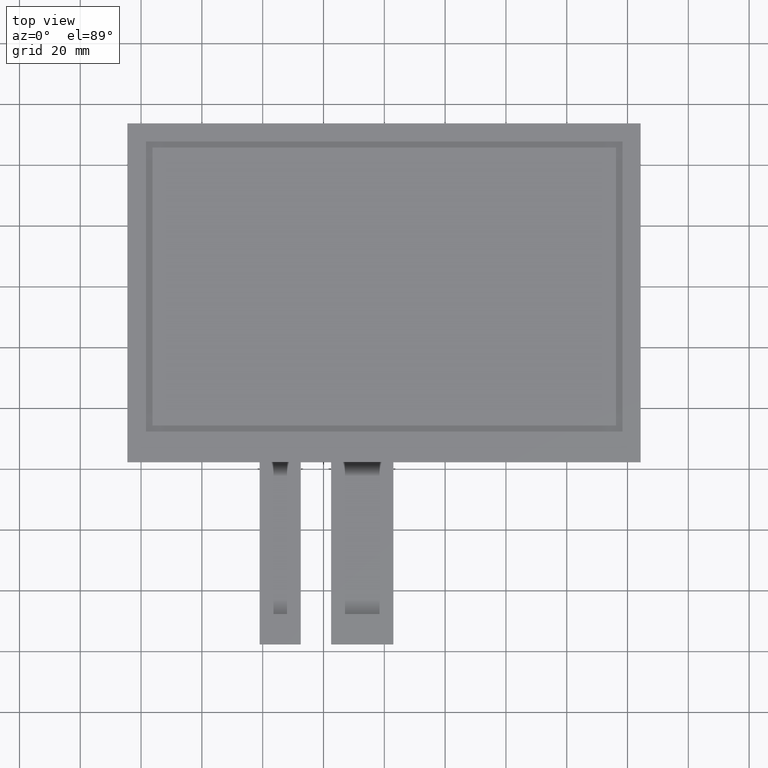
[diagram: clean part render]
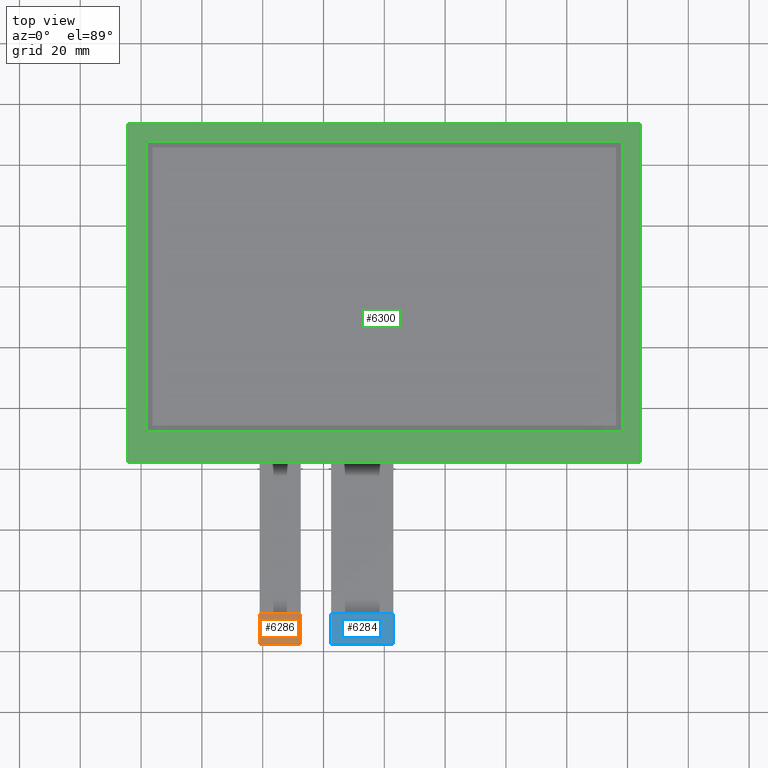
[diagram: same view with three faces highlighted in distinct colors, each labeled with its STEP entity id]
A machine part, top view with three faces highlighted in distinct colors.
Their STEP definitions:

[orange] entity #6286 — the highlighted planar face has unit normal (0, 0, 1).
#348=PLANE('',#6616);
#650=FACE_OUTER_BOUND('',#952,.T.);
#952=EDGE_LOOP('',(#5899,#5900,#5901,#5902,#5903,#5904));
#1085=LINE('',#8362,#1965);
#1096=LINE('',#8388,#1976);
#1801=LINE('',#9808,#2681);
#1816=LINE('',#9836,#2696);
#1965=VECTOR('',#6755,10.);
#1976=VECTOR('',#6776,10.);
#2681=VECTOR('',#8031,10.);
#2696=VECTOR('',#8056,10.);
#2737=CIRCLE('',#6328,0.2);
#2740=CIRCLE('',#6334,0.2);
#2745=VERTEX_POINT('',#8141);
#2746=VERTEX_POINT('',#8142);
#2854=VERTEX_POINT('',#8360);
#2858=VERTEX_POINT('',#8372);
#2864=VERTEX_POINT('',#8386);
#3304=VERTEX_POINT('',#9807);
#3337=EDGE_CURVE('',#2745,#2746,#2737,.T.);
#3447=EDGE_CURVE('',#2745,#2854,#1085,.T.);
#3453=EDGE_CURVE('',#2858,#2854,#2740,.T.);
#3460=EDGE_CURVE('',#2858,#2864,#1096,.T.);
#4169=EDGE_CURVE('',#3304,#2746,#1801,.T.);
#4184=EDGE_CURVE('',#2864,#3304,#1816,.T.);
#5899=ORIENTED_EDGE('',*,*,#3337,.F.);
#5900=ORIENTED_EDGE('',*,*,#3447,.T.);
#5901=ORIENTED_EDGE('',*,*,#3453,.F.);
#5902=ORIENTED_EDGE('',*,*,#3460,.T.);
#5903=ORIENTED_EDGE('',*,*,#4184,.T.);
#5904=ORIENTED_EDGE('',*,*,#4169,.T.);
#6286=ADVANCED_FACE('',(#650),#348,.T.);
#6328=AXIS2_PLACEMENT_3D('',#8143,#6641,#6642);
#6334=AXIS2_PLACEMENT_3D('',#8374,#6766,#6767);
#6616=AXIS2_PLACEMENT_3D('',#9837,#8057,#8058);
#6641=DIRECTION('center_axis',(0.,0.,-1.));
#6642=DIRECTION('ref_axis',(-0.707106781186548,-0.707106781186548,0.));
#6755=DIRECTION('',(1.,0.,0.));
#6766=DIRECTION('center_axis',(0.,0.,-1.));
#6767=DIRECTION('ref_axis',(0.707106781186563,-0.707106781186532,0.));
#6776=DIRECTION('',(4.44089209850062E-16,1.,0.));
#8031=DIRECTION('',(0.,-1.,0.));
#8056=DIRECTION('',(-1.,0.,0.));
#8057=DIRECTION('center_axis',(0.,0.,1.));
#8058=DIRECTION('ref_axis',(1.,0.,0.));
#8141=CARTESIAN_POINT('',(-40.8,-117.72,-0.8));
#8142=CARTESIAN_POINT('',(-41.,-117.52,-0.8));
#8143=CARTESIAN_POINT('Origin',(-40.8,-117.52,-0.8));
#8360=CARTESIAN_POINT('',(-27.6999999999999,-117.72,-0.8));
#8362=CARTESIAN_POINT('',(-41.,-117.72,-0.8));
#8372=CARTESIAN_POINT('',(-27.4999999999999,-117.52,-0.8));
#8374=CARTESIAN_POINT('Origin',(-27.6999999999999,-117.52,-0.8));
#8386=CARTESIAN_POINT('',(-27.4999999999999,-107.72,-0.8));
#8388=CARTESIAN_POINT('',(-27.4999999999999,-117.72,-0.8));
#9807=CARTESIAN_POINT('',(-41.,-107.72,-0.8));
#9808=CARTESIAN_POINT('',(-41.,-107.72,-0.8));
#9836=CARTESIAN_POINT('',(-27.4999999999999,-107.72,-0.8));
#9837=CARTESIAN_POINT('Origin',(-34.2499999999999,-112.72,-0.8));

[blue] entity #6284 — the highlighted planar face has unit normal (0, 0, 1).
#346=PLANE('',#6614);
#648=FACE_OUTER_BOUND('',#950,.T.);
#950=EDGE_LOOP('',(#5889,#5890,#5891,#5892,#5893,#5894));
#1263=LINE('',#8727,#2143);
#1274=LINE('',#8753,#2154);
#1808=LINE('',#9822,#2688);
#1814=LINE('',#9832,#2694);
#2143=VECTOR('',#6953,10.);
#2154=VECTOR('',#6974,10.);
#2688=VECTOR('',#8042,10.);
#2694=VECTOR('',#8050,10.);
#2741=CIRCLE('',#6338,0.2);
#2744=CIRCLE('',#6344,0.2);
#2866=VERTEX_POINT('',#8394);
#2867=VERTEX_POINT('',#8395);
#3031=VERTEX_POINT('',#8725);
#3035=VERTEX_POINT('',#8737);
#3041=VERTEX_POINT('',#8751);
#3309=VERTEX_POINT('',#9821);
#3463=EDGE_CURVE('',#2866,#2867,#2741,.T.);
#3629=EDGE_CURVE('',#2866,#3031,#1263,.T.);
#3635=EDGE_CURVE('',#3035,#3031,#2744,.T.);
#3642=EDGE_CURVE('',#3035,#3041,#1274,.T.);
#4176=EDGE_CURVE('',#3309,#2867,#1808,.T.);
#4182=EDGE_CURVE('',#3041,#3309,#1814,.T.);
#5889=ORIENTED_EDGE('',*,*,#3463,.F.);
#5890=ORIENTED_EDGE('',*,*,#3629,.T.);
#5891=ORIENTED_EDGE('',*,*,#3635,.F.);
#5892=ORIENTED_EDGE('',*,*,#3642,.T.);
#5893=ORIENTED_EDGE('',*,*,#4182,.T.);
#5894=ORIENTED_EDGE('',*,*,#4176,.T.);
#6284=ADVANCED_FACE('',(#648),#346,.T.);
#6338=AXIS2_PLACEMENT_3D('',#8396,#6783,#6784);
#6344=AXIS2_PLACEMENT_3D('',#8739,#6964,#6965);
#6614=AXIS2_PLACEMENT_3D('',#9833,#8051,#8052);
#6783=DIRECTION('center_axis',(0.,0.,-1.));
#6784=DIRECTION('ref_axis',(-0.707106781186555,-0.70710678118654,0.));
#6953=DIRECTION('',(1.,0.,0.));
#6964=DIRECTION('center_axis',(0.,0.,-1.));
#6965=DIRECTION('ref_axis',(0.707106781186555,-0.70710678118654,0.));
#6974=DIRECTION('',(-5.55111512312577E-17,1.,0.));
#8042=DIRECTION('',(2.22044604925031E-16,-1.,0.));
#8050=DIRECTION('',(-1.,0.,0.));
#8051=DIRECTION('center_axis',(0.,0.,1.));
#8052=DIRECTION('ref_axis',(1.,0.,0.));
#8394=CARTESIAN_POINT('',(-17.3,-117.72,-0.8));
#8395=CARTESIAN_POINT('',(-17.5,-117.52,-0.8));
#8396=CARTESIAN_POINT('Origin',(-17.3,-117.52,-0.8));
#8725=CARTESIAN_POINT('',(2.80000000000012,-117.72,-0.8));
#8727=CARTESIAN_POINT('',(-17.5,-117.72,-0.8));
#8737=CARTESIAN_POINT('',(3.00000000000013,-117.52,-0.8));
#8739=CARTESIAN_POINT('Origin',(2.80000000000013,-117.52,-0.8));
#8751=CARTESIAN_POINT('',(3.00000000000013,-107.72,-0.8));
#8753=CARTESIAN_POINT('',(3.00000000000013,-117.72,-0.8));
#9821=CARTESIAN_POINT('',(-17.5,-107.72,-0.8));
#9822=CARTESIAN_POINT('',(-17.5,-107.72,-0.8));
#9832=CARTESIAN_POINT('',(3.00000000000013,-107.72,-0.8));
#9833=CARTESIAN_POINT('Origin',(-7.24999999999994,-112.72,-0.8));

[green] entity #6300 — the highlighted planar face has unit normal (0, 0, 1).
#68=FACE_BOUND('',#968,.T.);
#362=PLANE('',#6630);
#664=FACE_OUTER_BOUND('',#967,.T.);
#967=EDGE_LOOP('',(#5961,#5962,#5963,#5964));
#968=EDGE_LOOP('',(#5965,#5966,#5967,#5968));
#1833=LINE('',#9873,#2713);
#1837=LINE('',#9881,#2717);
#1840=LINE('',#9887,#2720);
#1843=LINE('',#9892,#2723);
#1845=LINE('',#9898,#2725);
#1846=LINE('',#9900,#2726);
#1847=LINE('',#9902,#2727);
#1848=LINE('',#9903,#2728);
#2713=VECTOR('',#8093,10.);
#2717=VECTOR('',#8099,10.);
#2720=VECTOR('',#8104,10.);
#2723=VECTOR('',#8109,10.);
#2725=VECTOR('',#8115,10.);
#2726=VECTOR('',#8116,10.);
#2727=VECTOR('',#8117,10.);
#2728=VECTOR('',#8118,10.);
#3321=VERTEX_POINT('',#9871);
#3322=VERTEX_POINT('',#9872);
#3325=VERTEX_POINT('',#9880);
#3327=VERTEX_POINT('',#9886);
#3329=VERTEX_POINT('',#9896);
#3330=VERTEX_POINT('',#9897);
#3331=VERTEX_POINT('',#9899);
#3332=VERTEX_POINT('',#9901);
#4201=EDGE_CURVE('',#3321,#3322,#1833,.T.);
#4205=EDGE_CURVE('',#3325,#3321,#1837,.T.);
#4208=EDGE_CURVE('',#3327,#3325,#1840,.T.);
#4211=EDGE_CURVE('',#3322,#3327,#1843,.T.);
#4213=EDGE_CURVE('',#3329,#3330,#1845,.T.);
#4214=EDGE_CURVE('',#3330,#3331,#1846,.T.);
#4215=EDGE_CURVE('',#3331,#3332,#1847,.T.);
#4216=EDGE_CURVE('',#3332,#3329,#1848,.T.);
#5961=ORIENTED_EDGE('',*,*,#4213,.T.);
#5962=ORIENTED_EDGE('',*,*,#4214,.T.);
#5963=ORIENTED_EDGE('',*,*,#4215,.T.);
#5964=ORIENTED_EDGE('',*,*,#4216,.T.);
#5965=ORIENTED_EDGE('',*,*,#4201,.T.);
#5966=ORIENTED_EDGE('',*,*,#4211,.T.);
#5967=ORIENTED_EDGE('',*,*,#4208,.T.);
#5968=ORIENTED_EDGE('',*,*,#4205,.T.);
#6300=ADVANCED_FACE('',(#664,#68),#362,.T.);
#6630=AXIS2_PLACEMENT_3D('',#9895,#8113,#8114);
#8093=DIRECTION('',(-1.86298567320425E-16,1.,0.));
#8099=DIRECTION('',(-1.,-1.13360359885147E-16,0.));
#8104=DIRECTION('',(0.,-1.,0.));
#8109=DIRECTION('',(1.,0.,0.));
#8113=DIRECTION('center_axis',(0.,0.,1.));
#8114=DIRECTION('ref_axis',(1.,0.,0.));
#8115=DIRECTION('',(-1.,0.,0.));
#8116=DIRECTION('',(3.18915051956957E-16,-1.,0.));
#8117=DIRECTION('',(1.,1.05234409917076E-16,0.));
#8118=DIRECTION('',(-1.59457525978478E-16,1.,0.));
#9871=CARTESIAN_POINT('',(-78.4,-47.72,0.));
#9872=CARTESIAN_POINT('',(-78.4,47.63,0.));
#9873=CARTESIAN_POINT('',(-78.4,-24.87,0.));
#9880=CARTESIAN_POINT('',(78.3,-47.72,0.));
#9881=CARTESIAN_POINT('',(39.1,-47.72,0.));
#9886=CARTESIAN_POINT('',(78.3,47.63,0.));
#9887=CARTESIAN_POINT('',(78.3,22.805,0.));
#9892=CARTESIAN_POINT('',(-39.25,47.63,0.));
#9895=CARTESIAN_POINT('Origin',(-0.100000000000025,-2.02000000000001,0.));
#9896=CARTESIAN_POINT('',(84.3,53.68,0.));
#9897=CARTESIAN_POINT('',(-84.5,53.68,0.));
#9898=CARTESIAN_POINT('',(84.3,53.68,0.));
#9899=CARTESIAN_POINT('',(-84.5,-57.72,0.));
#9900=CARTESIAN_POINT('',(-84.5,53.68,0.));
#9901=CARTESIAN_POINT('',(84.3,-57.72,0.));
#9902=CARTESIAN_POINT('',(-84.5,-57.72,0.));
#9903=CARTESIAN_POINT('',(84.3,-57.72,0.));